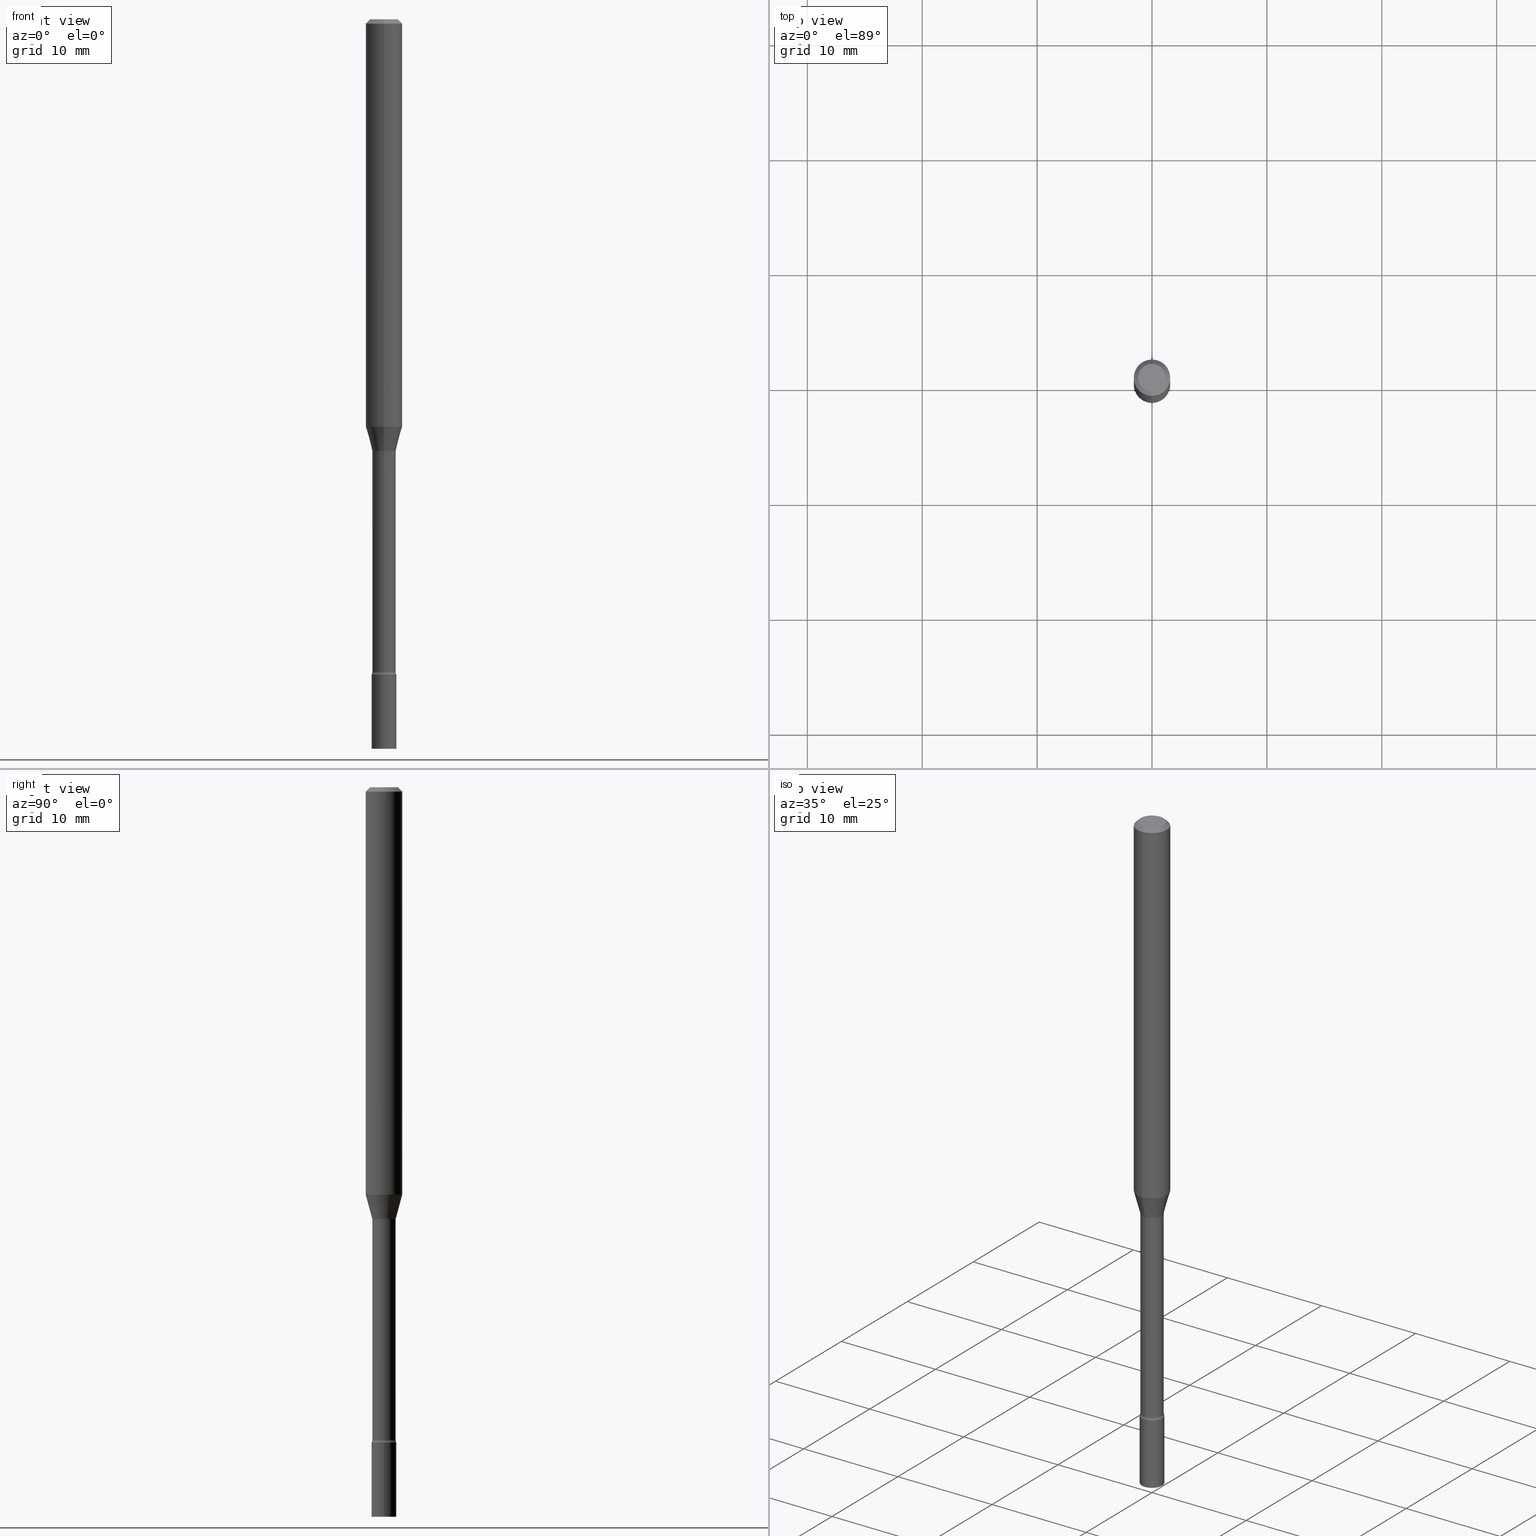
[diagram: canonical four-view strip — front | top / right | iso, engineering-drawing reading convention]
A machine part, canonical four-view strip (front | top / right | iso — engineering-drawing reading convention). The complete STEP part file that produces these views, byte-faithful:
ISO-10303-21;
HEADER;
FILE_DESCRIPTION (( 'STEP AP203' ),
    '1' );
FILE_NAME ('01358.STEP',
    '2024-03-08T21:16:33',
    ( '' ),
    ( '' ),
    'SwSTEP 2.0',
    'SolidWorks 2023',
    '' );
FILE_SCHEMA (( 'CONFIG_CONTROL_DESIGN' ));
ENDSEC;

DATA;
#1 = APPROVAL_STATUS ( 'not_yet_approved' ) ;
#2 =( GEOMETRIC_REPRESENTATION_CONTEXT ( 3 ) GLOBAL_UNCERTAINTY_ASSIGNED_CONTEXT ( ( #361 ) ) GLOBAL_UNIT_ASSIGNED_CONTEXT ( ( #482, #167, #127 ) ) REPRESENTATION_CONTEXT ( 'NONE', 'WORKASPACE' ) );
#3 = CARTESIAN_POINT ( 'NONE',  ( 0.000000000000000000, 0.000000000000000000, 0.000000000000000000 ) ) ;
#4 = DIRECTION ( 'NONE',  ( -2.445431924933628948E-29, 3.491534154894454552E-15, 1.000000000000000000 ) ) ;
#5 = ADVANCED_FACE ( 'NONE', ( #419 ), #454, .T. ) ;
#6 = ORIENTED_EDGE ( 'NONE', *, *, #13, .T. ) ;
#7 = DIRECTION ( 'NONE',  ( -2.445431924933629508E-29, 3.491534154894454158E-15, 1.000000000000000000 ) ) ;
#8 = TOROIDAL_SURFACE ( 'NONE', #108, 0.05495000000000008905, 0.01500000000000000291 ) ;
#9 = CARTESIAN_POINT ( 'NONE',  ( 5.469535085443512815E-29, -7.809282428803610510E-15, -2.236633549139569688 ) ) ;
#10 = ORIENTED_EDGE ( 'NONE', *, *, #273, .T. ) ;
#11 = CALENDAR_DATE ( 2024, 8, 3 ) ;
#12 = ORIENTED_EDGE ( 'NONE', *, *, #493, .T. ) ;
#13 = EDGE_CURVE ( 'NONE', #248, #251, #325, .T. ) ;
#14 = AXIS2_PLACEMENT_3D ( 'NONE', #66, #377, #145 ) ;
#15 = AXIS2_PLACEMENT_3D ( 'NONE', #9, #277, #83 ) ;
#16 = PRODUCT ( '01358', '01358', '', ( #48 ) ) ;
#17 = EDGE_LOOP ( 'NONE', ( #435, #60, #416, #487 ) ) ;
#18 = APPROVAL_STATUS ( 'not_yet_approved' ) ;
#19 = APPLICATION_CONTEXT ( 'configuration controlled 3d designs of mechanical parts and assemblies' ) ;
#20 = COORDINATED_UNIVERSAL_TIME_OFFSET ( 5, 0, .BEHIND. ) ;
#21 = DIRECTION ( 'NONE',  ( -6.982962677686266711E-15, -1.000000000000000000, 6.838167693777865983E-15 ) ) ;
#22 = CARTESIAN_POINT ( 'NONE',  ( 5.489994671475998305E-29, -7.838494177738049558E-15, -2.245000000000000107 ) ) ;
#23 = DIRECTION ( 'NONE',  ( 2.438088387897960049E-29, -3.491481338843145188E-15, -1.000000000000000000 ) ) ;
#24 = AXIS2_PLACEMENT_3D ( 'NONE', #265, #425, #32 ) ;
#25 = APPROVAL_PERSON_ORGANIZATION ( #370, #520, #141 ) ;
#26 = DIRECTION ( 'NONE',  ( -2.445431924933629508E-29, 3.491534154894454158E-15, 1.000000000000000000 ) ) ;
#27 = CARTESIAN_POINT ( 'NONE',  ( 2.929212428171563580E-16, 0.03994999999999226947, -2.236633549139570132 ) ) ;
#28 = ADVANCED_FACE ( 'NONE', ( #294 ), #302, .T. ) ;
#29 = FACE_OUTER_BOUND ( 'NONE', #441, .T. ) ;
#30 = VERTEX_POINT ( 'NONE', #263 ) ;
#31 = DIRECTION ( 'NONE',  ( -2.445431924933629508E-29, 3.491534154894454158E-15, 1.000000000000000000 ) ) ;
#32 = DIRECTION ( 'NONE',  ( 1.000000000000000000, -6.982962677686267499E-15, 4.876176775795935793E-29 ) ) ;
#33 = FACE_OUTER_BOUND ( 'NONE', #208, .T. ) ;
#34 = CIRCLE ( 'NONE', #152, 0.04249999999999999611 ) ;
#35 = CARTESIAN_POINT ( 'NONE',  ( -3.837137991388062032E-16, -0.05495000000000789531, -2.236633549139569688 ) ) ;
#36 = DIRECTION ( 'NONE',  ( -2.445431924933629508E-29, 3.491534154894454158E-15, 1.000000000000000000 ) ) ;
#37 = CARTESIAN_POINT ( 'NONE',  ( 3.904432333002303135E-16, 0.05494999999999227586, -2.236633549139570132 ) ) ;
#38 = CC_DESIGN_PERSON_AND_ORGANIZATION_ASSIGNMENT ( #240, #392, ( #217 ) ) ;
#39 = ORIENTED_EDGE ( 'NONE', *, *, #362, .F. ) ;
#40 = EDGE_CURVE ( 'NONE', #243, #147, #200, .T. ) ;
#41 = DIRECTION ( 'NONE',  ( 1.000000000000000000, -6.982962677686254089E-15, 0.000000000000000000 ) ) ;
#42 = CARTESIAN_POINT ( 'NONE',  ( 0.04249999999999999611, -9.025479260909530016E-15, -2.500000000000000000 ) ) ;
#43 = CONICAL_SURFACE ( 'NONE', #144, 0.04046111260566399165, 0.2617993877991499074 ) ;
#44 = COORDINATED_UNIVERSAL_TIME_OFFSET ( 5, 0, .BEHIND. ) ;
#45 = FACE_OUTER_BOUND ( 'NONE', #121, .T. ) ;
#46 = CARTESIAN_POINT ( 'NONE',  ( 2.838618229362148951E-16, 0.03994999999999483686, -1.481974787463811394 ) ) ;
#47 = VERTEX_POINT ( 'NONE', #27 ) ;
#48 = MECHANICAL_CONTEXT ( 'NONE', #19, 'mechanical' ) ;
#49 = VECTOR ( 'NONE', #467, 39.37007874015748854 ) ;
#50 = EDGE_CURVE ( 'NONE', #490, #94, #483, .T. ) ;
#51 = ORIENTED_EDGE ( 'NONE', *, *, #378, .F. ) ;
#52 = ORIENTED_EDGE ( 'NONE', *, *, #166, .T. ) ;
#53 = MANIFOLD_SOLID_BREP ( 'Body-Move/Copy2[1]', #73 ) ;
#54 = ORIENTED_EDGE ( 'NONE', *, *, #262, .T. ) ;
#55 = PERSON_AND_ORGANIZATION ( #137, #110 ) ;
#56 = VECTOR ( 'NONE', #68, 39.37007874015748143 ) ;
#57 = APPROVAL_ROLE ( '' ) ;
#58 = DIRECTION ( 'NONE',  ( -2.445431924933629508E-29, 3.491534154894454158E-15, 1.000000000000000000 ) ) ;
#59 = CARTESIAN_POINT ( 'NONE',  ( 5.469617575287968605E-29, -7.809164298651321670E-15, -2.236633549139569688 ) ) ;
#60 = ORIENTED_EDGE ( 'NONE', *, *, #249, .T. ) ;
#61 = DIRECTION ( 'NONE',  ( -6.982962677686266711E-15, -1.000000000000000000, 3.491534154894454552E-15 ) ) ;
#62 = CARTESIAN_POINT ( 'NONE',  ( 2.967759138017274423E-16, 0.04249999999999127392, -2.500000000000000000 ) ) ;
#63 = AXIS2_PLACEMENT_3D ( 'NONE', #304, #427, #385 ) ;
#64 = APPROVAL_PERSON_ORGANIZATION ( #488, #159, #57 ) ;
#65 = FACE_OUTER_BOUND ( 'NONE', #223, .T. ) ;
#66 = CARTESIAN_POINT ( 'NONE',  ( 0.000000000000000000, 0.000000000000000000, 0.000000000000000000 ) ) ;
#67 = ADVANCED_FACE ( 'NONE', ( #153 ), #220, .T. ) ;
#68 = DIRECTION ( 'NONE',  ( -2.445431924933629508E-29, 3.491534154894454552E-15, 1.000000000000000000 ) ) ;
#69 = ORIENTED_EDGE ( 'NONE', *, *, #283, .T. ) ;
#70 = LINE ( 'NONE', #382, #49 ) ;
#71 = EDGE_CURVE ( 'NONE', #490, #280, #113, .T. ) ;
#72 = CARTESIAN_POINT ( 'NONE',  ( -2.789693589735121927E-16, -0.03995000000000789586, -2.236633549139569688 ) ) ;
#73 = CLOSED_SHELL ( 'NONE', ( #410, #28, #286, #67 ) ) ;
#74 = CIRCLE ( 'NONE', #501, 0.01500000000000000291 ) ;
#75 = ORIENTED_EDGE ( 'NONE', *, *, #199, .T. ) ;
#76 = DIRECTION ( 'NONE',  ( -6.982962677686265133E-15, -1.000000000000000000, 6.838167693777879394E-15 ) ) ;
#77 = ORIENTED_EDGE ( 'NONE', *, *, #183, .F. ) ;
#78 = LINE ( 'NONE', #160, #207 ) ;
#79 = APPROVAL_DATE_TIME ( #438, #86 ) ;
#80 = ADVANCED_FACE ( 'NONE', ( #266 ), #99, .F. ) ;
#81 = AXIS2_PLACEMENT_3D ( 'NONE', #182, #465, #424 ) ;
#82 = AXIS2_PLACEMENT_3D ( 'NONE', #111, #114, #197 ) ;
#83 = DIRECTION ( 'NONE',  ( -6.982962677686266711E-15, -1.000000000000000000, 6.838167693777865983E-15 ) ) ;
#84 = DIRECTION ( 'NONE',  ( 0.000000000000000000, 0.000000000000000000, 1.000000000000000000 ) ) ;
#85 = DIRECTION ( 'NONE',  ( -2.445468806185136597E-29, 3.491481338843145583E-15, 1.000000000000000000 ) ) ;
#86 = APPROVAL ( #1, 'UNSPECIFIED' ) ;
#87 = EDGE_LOOP ( 'NONE', ( #364, #139, #93, #405 ) ) ;
#88 = LENGTH_MEASURE_WITH_UNIT ( LENGTH_MEASURE( 0.02539999999999999897 ), #170 );
#89 = AXIS2_PLACEMENT_3D ( 'NONE', #329, #101, #255 ) ;
#90 = AXIS2_PLACEMENT_3D ( 'NONE', #469, #36, #296 ) ;
#91 = EDGE_CURVE ( 'NONE', #280, #169, #384, .T. ) ;
#92 = CC_DESIGN_APPROVAL ( #159, ( #353 ) ) ;
#93 = ORIENTED_EDGE ( 'NONE', *, *, #155, .T. ) ;
#94 = VERTEX_POINT ( 'NONE', #460 ) ;
#95 = COORDINATED_UNIVERSAL_TIME_OFFSET ( 5, 0, .BEHIND. ) ;
#96 = EDGE_CURVE ( 'NONE', #47, #172, #499, .T. ) ;
#97 = EDGE_LOOP ( 'NONE', ( #244, #446, #252, #516 ) ) ;
#98 = APPROVAL_DATE_TIME ( #451, #520 ) ;
#99 = TOROIDAL_SURFACE ( 'NONE', #89, 0.05494999999999999885, 0.01500000000000001506 ) ;
#100 = AXIS2_PLACEMENT_3D ( 'NONE', #470, #389, #117 ) ;
#101 = DIRECTION ( 'NONE',  ( -2.445431924933629508E-29, 3.491534154894454158E-15, 1.000000000000000000 ) ) ;
#102 = FACE_OUTER_BOUND ( 'NONE', #87, .T. ) ;
#103 = PLANE ( 'NONE',  #215 ) ;
#104 = LINE ( 'NONE', #261, #455 ) ;
#105 = DIRECTION ( 'NONE',  ( 6.982962677686265922E-15, 1.000000000000000000, -3.491534154894454552E-15 ) ) ;
#106 = DIRECTION ( 'NONE',  ( -2.445431924933629508E-29, 3.491534154894454552E-15, 1.000000000000000000 ) ) ;
#107 = ADVANCED_FACE ( 'NONE', ( #332 ), #103, .F. ) ;
#108 = AXIS2_PLACEMENT_3D ( 'NONE', #59, #372, #146 ) ;
#109 = EDGE_LOOP ( 'NONE', ( #407, #311 ) ) ;
#110 = ORGANIZATION ( 'UNSPECIFIED', 'UNSPECIFIED', '' ) ;
#111 = CARTESIAN_POINT ( 'NONE',  ( 0.000000000000000000, 0.000000000000000000, 0.000000000000000000 ) ) ;
#112 = DIRECTION ( 'NONE',  ( -2.445468806185136877E-29, 3.491481338843145188E-15, 1.000000000000000000 ) ) ;
#113 = LINE ( 'NONE', #186, #253 ) ;
#114 = DIRECTION ( 'NONE',  ( -2.445431924933629508E-29, 3.491534154894454158E-15, 1.000000000000000000 ) ) ;
#115 = DIRECTION ( 'NONE',  ( -2.445431924933629508E-29, 3.491534154894454158E-15, 1.000000000000000000 ) ) ;
#116 = CARTESIAN_POINT ( 'NONE',  ( -4.287811248607203282E-16, -0.06250000000000005551, -0.01499999999999981209 ) ) ;
#117 = DIRECTION ( 'NONE',  ( 6.982962677686265922E-15, 1.000000000000000000, -3.483106191921935554E-15 ) ) ;
#118 = TOROIDAL_SURFACE ( 'NONE', #216, 0.05495000000000008905, 0.01500000000000000291 ) ;
#119 = VERTEX_POINT ( 'NONE', #260 ) ;
#120 = LINE ( 'NONE', #352, #322 ) ;
#121 = EDGE_LOOP ( 'NONE', ( #496, #408 ) ) ;
#122 = DIRECTION ( 'NONE',  ( -6.982962677686265922E-15, -1.000000000000000000, 3.491534154894454552E-15 ) ) ;
#123 = EDGE_CURVE ( 'NONE', #147, #243, #510, .T. ) ;
#124 = ORIENTED_EDGE ( 'NONE', *, *, #123, .F. ) ;
#125 = DIRECTION ( 'NONE',  ( -6.982962677686265922E-15, -1.000000000000000000, 3.491534154894454158E-15 ) ) ;
#126 = CIRCLE ( 'NONE', #90, 0.06250000000000000000 ) ;
#127 =( NAMED_UNIT ( * ) SI_UNIT ( $, .STERADIAN. ) SOLID_ANGLE_UNIT ( ) );
#128 = ORIENTED_EDGE ( 'NONE', *, *, #400, .T. ) ;
#129 = CARTESIAN_POINT ( 'NONE',  ( 5.490077469885631570E-29, -7.838375605702861835E-15, -2.245000000000000107 ) ) ;
#130 = VERTEX_POINT ( 'NONE', #472 ) ;
#131 = ADVANCED_FACE ( 'NONE', ( #33 ), #391, .T. ) ;
#132 = PERSON_AND_ORGANIZATION ( #137, #110 ) ;
#133 = PRODUCT_RELATED_PRODUCT_CATEGORY ( 'detail', '', ( #16 ) ) ;
#134 = AXIS2_PLACEMENT_3D ( 'NONE', #226, #31, #509 ) ;
#135 = AXIS2_PLACEMENT_3D ( 'NONE', #337, #194, #312 ) ;
#136 = AXIS2_PLACEMENT_3D ( 'NONE', #35, #517, #158 ) ;
#137 = PERSON ( 'UNSPECIFIED', 'UNSPECIFIED', 'UNSPECIFIED', ('UNSPECIFIED'), ('UNSPECIFIED'), ('UNSPECIFIED') ) ;
#138 = VERTEX_POINT ( 'NONE', #350 ) ;
#139 = ORIENTED_EDGE ( 'NONE', *, *, #40, .T. ) ;
#140 = ORIENTED_EDGE ( 'NONE', *, *, #91, .F. ) ;
#141 = APPROVAL_ROLE ( '' ) ;
#142 = ORIENTED_EDGE ( 'NONE', *, *, #238, .F. ) ;
#143 = CARTESIAN_POINT ( 'NONE',  ( 0.000000000000000000, 0.000000000000000000, 0.000000000000000000 ) ) ;
#144 = AXIS2_PLACEMENT_3D ( 'NONE', #310, #429, #269 ) ;
#145 = DIRECTION ( 'NONE',  ( -6.982962677686265133E-15, -1.000000000000000000, 3.491534154894453763E-15 ) ) ;
#146 = DIRECTION ( 'NONE',  ( -6.982962677686265922E-15, -1.000000000000000000, 3.491534154894454158E-15 ) ) ;
#147 = VERTEX_POINT ( 'NONE', #42 ) ;
#148 = EDGE_CURVE ( 'NONE', #319, #119, #303, .T. ) ;
#149 = CARTESIAN_POINT ( 'NONE',  ( -0.04249999999999999611, 3.019806626980425514E-16, -2.090547413358334859E-30 ) ) ;
#150 = ORIENTED_EDGE ( 'NONE', *, *, #13, .F. ) ;
#151 = AXIS2_PLACEMENT_3D ( 'NONE', #224, #339, #21 ) ;
#152 = AXIS2_PLACEMENT_3D ( 'NONE', #129, #85, #173 ) ;
#153 = FACE_OUTER_BOUND ( 'NONE', #327, .T. ) ;
#154 = CARTESIAN_POINT ( 'NONE',  ( 4.440892098500969316E-16, 0.06249999999999993755, -0.01500000000000024751 ) ) ;
#155 = EDGE_CURVE ( 'NONE', #147, #119, #78, .T. ) ;
#156 = DIRECTION ( 'NONE',  ( -2.445468806185136597E-29, 3.491481338843145583E-15, 1.000000000000000000 ) ) ;
#157 = DIRECTION ( 'NONE',  ( -4.851104656540964275E-15, -0.7071067811865500152, -0.7071067811865450192 ) ) ;
#158 = DIRECTION ( 'NONE',  ( -6.982962677686266711E-15, -1.000000000000000000, 0.000000000000000000 ) ) ;
#159 = APPROVAL ( #457, 'UNSPECIFIED' ) ;
#160 = CARTESIAN_POINT ( 'NONE',  ( 0.04249999999999999611, -2.967759138016663549E-16, 2.072375129713272502E-30 ) ) ;
#161 = AXIS2_PLACEMENT_3D ( 'NONE', #338, #459, #61 ) ;
#162 = LOCAL_TIME ( 16, 16, 33.00000000000000000, #453 ) ;
#163 = ADVANCED_FACE ( 'NONE', ( #192 ), #43, .T. ) ;
#164 = CARTESIAN_POINT ( 'NONE',  ( -4.364351673553912750E-16, -0.06250000000000005551, -0.01499999999999981209 ) ) ;
#165 = CARTESIAN_POINT ( 'NONE',  ( 3.624123114295597738E-29, -5.174287315065933391E-15, -1.481974787463811172 ) ) ;
#166 = EDGE_CURVE ( 'NONE', #506, #276, #431, .T. ) ;
#167 =( NAMED_UNIT ( * ) PLANE_ANGLE_UNIT ( ) SI_UNIT ( $, .RADIAN. ) );
#168 = CIRCLE ( 'NONE', #161, 0.04749999999999999362 ) ;
#169 = VERTEX_POINT ( 'NONE', #164 ) ;
#170 =( LENGTH_UNIT ( ) NAMED_UNIT ( * ) SI_UNIT ( $, .METRE. ) );
#171 = LOCAL_TIME ( 16, 16, 33.00000000000000000, #95 ) ;
#172 = VERTEX_POINT ( 'NONE', #72 ) ;
#173 = DIRECTION ( 'NONE',  ( 1.000000000000000000, -6.982962677686276177E-15, 0.000000000000000000 ) ) ;
#174 = EDGE_LOOP ( 'NONE', ( #150, #292, #52, #250 ) ) ;
#175 = AXIS2_PLACEMENT_3D ( 'NONE', #345, #383, #76 ) ;
#176 = ADVANCED_FACE ( 'NONE', ( #234 ), #313, .T. ) ;
#177 = CARTESIAN_POINT ( 'NONE',  ( 3.668147887400451129E-31, -5.237301232341692009E-17, -0.01500000000000003067 ) ) ;
#178 = DATE_AND_TIME ( #363, #245 ) ;
#179 = ORIENTED_EDGE ( 'NONE', *, *, #40, .F. ) ;
#180 = CARTESIAN_POINT ( 'NONE',  ( 3.614574591875615765E-29, -5.160810454083656268E-15, -1.478092501787273250 ) ) ;
#181 = CONICAL_SURFACE ( 'NONE', #440, 0.06250000000000000000, 0.7853981633974483900 ) ;
#182 = CARTESIAN_POINT ( 'NONE',  ( 5.490077469885631570E-29, -7.838375605702861835E-15, -2.245000000000000107 ) ) ;
#183 = EDGE_CURVE ( 'NONE', #94, #169, #513, .T. ) ;
#184 = CYLINDRICAL_SURFACE ( 'NONE', #413, 0.06250000000000000000 ) ;
#185 = LINE ( 'NONE', #505, #403 ) ;
#186 = CARTESIAN_POINT ( 'NONE',  ( 4.364351673553919652E-16, 0.06249999999999995143, -0.01500000000000024751 ) ) ;
#187 = LINE ( 'NONE', #259, #56 ) ;
#188 = ORIENTED_EDGE ( 'NONE', *, *, #346, .T. ) ;
#189 = CARTESIAN_POINT ( 'NONE',  ( -2.789693589735301393E-16, -0.03995000000000518275, -1.481974787463810728 ) ) ;
#190 = CLOSED_SHELL ( 'NONE', ( #519, #5, #214, #203, #433, #163, #461, #131, #176, #107, #479, #289, #418, #80 ) ) ;
#191 = AXIS2_PLACEMENT_3D ( 'NONE', #206, #4, #122 ) ;
#192 = FACE_OUTER_BOUND ( 'NONE', #97, .T. ) ;
#193 = CC_DESIGN_APPROVAL ( #520, ( #422 ) ) ;
#194 = DIRECTION ( 'NONE',  ( -2.445431924933629508E-29, 3.491534154894454158E-15, 1.000000000000000000 ) ) ;
#195 = CARTESIAN_POINT ( 'NONE',  ( 3.668147887400451129E-31, -5.237301232341692009E-17, -0.01500000000000003067 ) ) ;
#196 = ORIENTED_EDGE ( 'NONE', *, *, #166, .F. ) ;
#197 = DIRECTION ( 'NONE',  ( -6.982962677686265133E-15, -1.000000000000000000, 3.491534154894453763E-15 ) ) ;
#198 = DIRECTION ( 'NONE',  ( -6.982962677686265922E-15, -1.000000000000000000, 3.491534154894454158E-15 ) ) ;
#199 = EDGE_CURVE ( 'NONE', #47, #138, #74, .T. ) ;
#200 = CIRCLE ( 'NONE', #366, 0.04249999999999999611 ) ;
#201 = DIRECTION ( 'NONE',  ( 2.445431924933629508E-29, -3.491534154894454158E-15, -1.000000000000000000 ) ) ;
#202 = AXIS2_PLACEMENT_3D ( 'NONE', #486, #443, #209 ) ;
#203 = ADVANCED_FACE ( 'NONE', ( #476 ), #181, .T. ) ;
#204 = CC_DESIGN_APPROVAL ( #86, ( #217 ) ) ;
#205 = PERSON_AND_ORGANIZATION_ROLE ( 'design_owner' ) ;
#206 = CARTESIAN_POINT ( 'NONE',  ( 2.967759138017211808E-16, 0.04249999999999216210, -2.245000000000000551 ) ) ;
#207 = VECTOR ( 'NONE', #236, 39.37007874015748143 ) ;
#208 = EDGE_LOOP ( 'NONE', ( #213, #367, #128, #140 ) ) ;
#209 = DIRECTION ( 'NONE',  ( -6.982962677686265922E-15, -1.000000000000000000, 6.751786635945948968E-15 ) ) ;
#210 = ORIENTED_EDGE ( 'NONE', *, *, #307, .T. ) ;
#211 = ORIENTED_EDGE ( 'NONE', *, *, #324, .F. ) ;
#212 = DATE_AND_TIME ( #495, #171 ) ;
#213 = ORIENTED_EDGE ( 'NONE', *, *, #249, .F. ) ;
#214 = ADVANCED_FACE ( 'NONE', ( #318 ), #118, .F. ) ;
#215 = AXIS2_PLACEMENT_3D ( 'NONE', #258, #504, #105 ) ;
#216 = AXIS2_PLACEMENT_3D ( 'NONE', #239, #274, #436 ) ;
#217 = PRODUCT_DEFINITION ( 'UNKNOWN', '', #353, #333 ) ;
#218 = DIRECTION ( 'NONE',  ( -6.982962677686265922E-15, -1.000000000000000000, 3.483106191921935554E-15 ) ) ;
#219 = CARTESIAN_POINT ( 'NONE',  ( -2.825384392229768271E-16, -0.04046111260566916112, -1.478092501787272806 ) ) ;
#220 = PLANE ( 'NONE',  #420 ) ;
#221 = DIRECTION ( 'NONE',  ( -2.445431924933629508E-29, 3.491534154894454158E-15, 1.000000000000000000 ) ) ;
#222 = CIRCLE ( 'NONE', #474, 0.01500000000000001159 ) ;
#223 = EDGE_LOOP ( 'NONE', ( #281, #373, #328, #210 ) ) ;
#224 = CARTESIAN_POINT ( 'NONE',  ( 5.469535085443512815E-29, -7.809282428803610510E-15, -2.236633549139569688 ) ) ;
#225 = CYLINDRICAL_SURFACE ( 'NONE', #489, 0.04249999999999999611 ) ;
#226 = CARTESIAN_POINT ( 'NONE',  ( 7.070086584994232253E-46, -1.009451481264948073E-31, -2.891140216543185469E-17 ) ) ;
#227 = CC_DESIGN_DATE_AND_TIME_ASSIGNMENT ( #178, #365, ( #422 ) ) ;
#228 = DIRECTION ( 'NONE',  ( -1.807323732225327773E-15, -0.2588190451025178529, 0.9659258262890690894 ) ) ;
#229 = CARTESIAN_POINT ( 'NONE',  ( 3.614574591875615765E-29, -5.160810454083656268E-15, -1.478092501787273250 ) ) ;
#230 = CYLINDRICAL_SURFACE ( 'NONE', #82, 0.03995000000000004103 ) ;
#231 = CARTESIAN_POINT ( 'NONE',  ( -3.837137991388241005E-16, -0.05495000000000517526, -1.481974787463810728 ) ) ;
#232 = CIRCLE ( 'NONE', #295, 0.03995000000000000634 ) ;
#233 = CC_DESIGN_PERSON_AND_ORGANIZATION_ASSIGNMENT ( #55, #298, ( #353 ) ) ;
#234 = FACE_OUTER_BOUND ( 'NONE', #450, .T. ) ;
#235 = EDGE_LOOP ( 'NONE', ( #323, #10 ) ) ;
#236 = DIRECTION ( 'NONE',  ( -2.445468806185136877E-29, 3.491481338843145188E-15, 1.000000000000000000 ) ) ;
#237 = ORIENTED_EDGE ( 'NONE', *, *, #449, .F. ) ;
#238 = EDGE_CURVE ( 'NONE', #172, #276, #120, .T. ) ;
#239 = CARTESIAN_POINT ( 'NONE',  ( 5.469617575287968605E-29, -7.809164298651321670E-15, -2.236633549139569688 ) ) ;
#240 = PERSON_AND_ORGANIZATION ( #137, #110 ) ;
#241 = CIRCLE ( 'NONE', #15, 0.03995000000000008267 ) ;
#242 = APPROVAL_ROLE ( '' ) ;
#243 = VERTEX_POINT ( 'NONE', #309 ) ;
#244 = ORIENTED_EDGE ( 'NONE', *, *, #324, .T. ) ;
#245 = LOCAL_TIME ( 16, 16, 33.00000000000000000, #20 ) ;
#246 = EDGE_LOOP ( 'NONE', ( #355, #75, #69, #452 ) ) ;
#247 = EDGE_CURVE ( 'NONE', #411, #130, #126, .T. ) ;
#248 = VERTEX_POINT ( 'NONE', #344 ) ;
#249 = EDGE_CURVE ( 'NONE', #130, #280, #306, .T. ) ;
#250 = ORIENTED_EDGE ( 'NONE', *, *, #406, .F. ) ;
#251 = VERTEX_POINT ( 'NONE', #219 ) ;
#252 = ORIENTED_EDGE ( 'NONE', *, *, #247, .F. ) ;
#253 = VECTOR ( 'NONE', #336, 39.37007874015748143 ) ;
#254 = CONICAL_SURFACE ( 'NONE', #202, 0.04046111260566399165, 0.2617993877991499074 ) ;
#255 = DIRECTION ( 'NONE',  ( -6.982962677686265922E-15, -1.000000000000000000, 3.491534154894454158E-15 ) ) ;
#256 = CC_DESIGN_PERSON_AND_ORGANIZATION_ASSIGNMENT ( #291, #293, ( #422 ) ) ;
#257 = CARTESIAN_POINT ( 'NONE',  ( 5.489994671475998305E-29, -7.838494177738049558E-15, -2.245000000000000107 ) ) ;
#258 = CARTESIAN_POINT ( 'NONE',  ( 3.316907271900976096E-16, 0.04749999999999999362, -1.803035734402024784E-16 ) ) ;
#259 = CARTESIAN_POINT ( 'NONE',  ( 2.838618229361602665E-16, 0.03995000000000004103, -1.394867894880335725E-16 ) ) ;
#260 = CARTESIAN_POINT ( 'NONE',  ( 0.04249999999999999611, -8.135151519504528486E-15, -2.245000000000000107 ) ) ;
#261 = CARTESIAN_POINT ( 'NONE',  ( -2.825384392229768271E-16, -0.04046111260566916112, -1.478092501787272806 ) ) ;
#262 = EDGE_CURVE ( 'NONE', #243, #319, #415, .T. ) ;
#263 = CARTESIAN_POINT ( 'NONE',  ( -2.967759138016113812E-16, -0.04250000000000784400, -2.245000000000000107 ) ) ;
#264 = CARTESIAN_POINT ( 'NONE',  ( 0.000000000000000000, 0.000000000000000000, 0.000000000000000000 ) ) ;
#265 = CARTESIAN_POINT ( 'NONE',  ( 0.000000000000000000, 0.000000000000000000, 0.000000000000000000 ) ) ;
#266 = FACE_OUTER_BOUND ( 'NONE', #447, .T. ) ;
#267 = DIRECTION ( 'NONE',  ( -2.445431924933629508E-29, 3.491534154894454158E-15, 1.000000000000000000 ) ) ;
#268 = DIRECTION ( 'NONE',  ( -2.445431924933629508E-29, 3.491534154894454158E-15, 1.000000000000000000 ) ) ;
#269 = DIRECTION ( 'NONE',  ( -6.982962677686265922E-15, -1.000000000000000000, 6.751786635945948968E-15 ) ) ;
#270 = AXIS2_PLACEMENT_3D ( 'NONE', #180, #462, #376 ) ;
#271 = DIRECTION ( 'NONE',  ( 1.000000000000000000, -7.105427357601001070E-15, 4.926316155352164082E-29 ) ) ;
#272 = EDGE_LOOP ( 'NONE', ( #12, #188, #39, #142 ) ) ;
#273 = EDGE_CURVE ( 'NONE', #94, #490, #168, .T. ) ;
#274 = DIRECTION ( 'NONE',  ( -2.445431924933629508E-29, 3.491534154894454158E-15, 1.000000000000000000 ) ) ;
#275 = CARTESIAN_POINT ( 'NONE',  ( 0.000000000000000000, 0.000000000000000000, 0.000000000000000000 ) ) ;
#276 = VERTEX_POINT ( 'NONE', #189 ) ;
#277 = DIRECTION ( 'NONE',  ( -2.445431924933629508E-29, 3.491534154894454158E-15, 1.000000000000000000 ) ) ;
#278 = AXIS2_PLACEMENT_3D ( 'NONE', #518, #515, #434 ) ;
#279 = AXIS2_PLACEMENT_3D ( 'NONE', #165, #7, #125 ) ;
#280 = VERTEX_POINT ( 'NONE', #154 ) ;
#281 = ORIENTED_EDGE ( 'NONE', *, *, #199, .F. ) ;
#282 = DIRECTION ( 'NONE',  ( 1.000000000000000000, 0.000000000000000000, 0.000000000000000000 ) ) ;
#283 = EDGE_CURVE ( 'NONE', #138, #30, #386, .T. ) ;
#284 = ORIENTED_EDGE ( 'NONE', *, *, #340, .T. ) ;
#285 = APPLICATION_PROTOCOL_DEFINITION ( 'international standard', 'config_control_design', 1994, #331 ) ;
#286 = ADVANCED_FACE ( 'NONE', ( #102 ), #225, .T. ) ;
#287 = CIRCLE ( 'NONE', #63, 0.01500000000000001159 ) ;
#288 = APPROVAL_DATE_TIME ( #212, #159 ) ;
#289 = ADVANCED_FACE ( 'NONE', ( #65 ), #8, .F. ) ;
#290 = ORIENTED_EDGE ( 'NONE', *, *, #50, .F. ) ;
#291 = PERSON_AND_ORGANIZATION ( #137, #110 ) ;
#292 = ORIENTED_EDGE ( 'NONE', *, *, #437, .T. ) ;
#293 = PERSON_AND_ORGANIZATION_ROLE ( 'classification_officer' ) ;
#294 = FACE_OUTER_BOUND ( 'NONE', #109, .T. ) ;
#295 = AXIS2_PLACEMENT_3D ( 'NONE', #417, #268, #428 ) ;
#296 = DIRECTION ( 'NONE',  ( -6.982962677686265922E-15, -1.000000000000000000, 4.370956789862821150E-15 ) ) ;
#297 = CARTESIAN_POINT ( 'NONE',  ( 6.113672015462842613E-29, -8.728703347107864943E-15, -2.500000000000000000 ) ) ;
#298 = PERSON_AND_ORGANIZATION_ROLE ( 'design_supplier' ) ;
#299 = CARTESIAN_POINT ( 'NONE',  ( -0.04249999999999999611, -7.981558813707320936E-15, -2.245000000000000107 ) ) ;
#300 = ORIENTED_EDGE ( 'NONE', *, *, #406, .T. ) ;
#301 = DIRECTION ( 'NONE',  ( -6.982962677686266711E-15, -1.000000000000000000, 6.427877632151208176E-15 ) ) ;
#302 = PLANE ( 'NONE',  #81 ) ;
#303 = CIRCLE ( 'NONE', #278, 0.04249999999999999611 ) ;
#304 = CARTESIAN_POINT ( 'NONE',  ( 3.904432333002112329E-16, 0.05494999999999482937, -1.481974787463811394 ) ) ;
#305 = VECTOR ( 'NONE', #157, 39.37007874015748143 ) ;
#306 = LINE ( 'NONE', #503, #445 ) ;
#307 = EDGE_CURVE ( 'NONE', #30, #138, #484, .T. ) ;
#308 = DIRECTION ( 'NONE',  ( 1.000000000000000000, -6.982962677686254089E-15, 0.000000000000000000 ) ) ;
#309 = CARTESIAN_POINT ( 'NONE',  ( -0.04249999999999999611, -7.981558813707320936E-15, -2.500000000000000000 ) ) ;
#310 = CARTESIAN_POINT ( 'NONE',  ( 3.614574591875615765E-29, -5.160810454083656268E-15, -1.478092501787273250 ) ) ;
#311 = ORIENTED_EDGE ( 'NONE', *, *, #148, .T. ) ;
#312 = DIRECTION ( 'NONE',  ( -6.982962677686265922E-15, -1.000000000000000000, 4.370956789862821150E-15 ) ) ;
#313 = CONICAL_SURFACE ( 'NONE', #100, 0.06250000000000000000, 0.7853981633974483900 ) ;
#314 = DIRECTION ( 'NONE',  ( 7.105427357601001859E-15, 1.000000000000000000, 0.000000000000000000 ) ) ;
#315 = ORIENTED_EDGE ( 'NONE', *, *, #71, .T. ) ;
#316 = COORDINATED_UNIVERSAL_TIME_OFFSET ( 5, 0, .BEHIND. ) ;
#317 = CC_DESIGN_PERSON_AND_ORGANIZATION_ASSIGNMENT ( #132, #205, ( #16 ) ) ;
#318 = FACE_OUTER_BOUND ( 'NONE', #246, .T. ) ;
#319 = VERTEX_POINT ( 'NONE', #299 ) ;
#320 = CARTESIAN_POINT ( 'NONE',  ( 3.840629472727447874E-16, 0.04749999999999999362, -1.947592745229184119E-16 ) ) ;
#321 = AXIS2_PLACEMENT_3D ( 'NONE', #229, #463, #371 ) ;
#322 = VECTOR ( 'NONE', #106, 39.37007874015748143 ) ;
#323 = ORIENTED_EDGE ( 'NONE', *, *, #50, .T. ) ;
#324 = EDGE_CURVE ( 'NONE', #251, #248, #343, .T. ) ;
#325 = CIRCLE ( 'NONE', #321, 0.04046111260566399165 ) ;
#326 = ADVANCED_BREP_SHAPE_REPRESENTATION ( '01358', ( #53, #399, #432 ), #2 ) ;
#327 = EDGE_LOOP ( 'NONE', ( #124, #179 ) ) ;
#328 = ORIENTED_EDGE ( 'NONE', *, *, #439, .T. ) ;
#329 = CARTESIAN_POINT ( 'NONE',  ( 3.624123114295597738E-29, -5.174287315065933391E-15, -1.481974787463811172 ) ) ;
#330 = DIRECTION ( 'NONE',  ( -6.982962677686266711E-15, -1.000000000000000000, 6.427877632151208176E-15 ) ) ;
#331 = APPLICATION_CONTEXT ( 'configuration controlled 3d designs of mechanical parts and assemblies' ) ;
#332 = FACE_OUTER_BOUND ( 'NONE', #235, .T. ) ;
#333 = DESIGN_CONTEXT ( 'detailed design', #331, 'design' ) ;
#334 = CIRCLE ( 'NONE', #393, 0.06250000000000000000 ) ;
#335 = DIRECTION ( 'NONE',  ( 1.000000000000000000, -6.982962677686267499E-15, 4.876176775795935793E-29 ) ) ;
#336 = DIRECTION ( 'NONE',  ( 4.937700262164548042E-15, 0.7071067811865451302, -0.7071067811865499042 ) ) ;
#337 = CARTESIAN_POINT ( 'NONE',  ( 3.413437210810433507E-29, -4.873630905696038116E-15, -1.395842254289322071 ) ) ;
#338 = CARTESIAN_POINT ( 'NONE',  ( 7.070086584994232253E-46, -1.009451481264948073E-31, -2.891140216543185469E-17 ) ) ;
#339 = DIRECTION ( 'NONE',  ( -2.445431924933629508E-29, 3.491534154894454158E-15, 1.000000000000000000 ) ) ;
#340 = EDGE_CURVE ( 'NONE', #251, #411, #104, .T. ) ;
#341 = DIRECTION ( 'NONE',  ( -2.445431924933629508E-29, 3.491534154894454552E-15, 1.000000000000000000 ) ) ;
#342 = ORIENTED_EDGE ( 'NONE', *, *, #91, .T. ) ;
#343 = CIRCLE ( 'NONE', #270, 0.04046111260566399165 ) ;
#344 = CARTESIAN_POINT ( 'NONE',  ( 3.657913531386962787E-16, 0.04046111260565882911, -1.478092501787273472 ) ) ;
#345 = CARTESIAN_POINT ( 'NONE',  ( 3.624068457210734143E-29, -5.174365587122345573E-15, -1.481974787463811172 ) ) ;
#346 = EDGE_CURVE ( 'NONE', #47, #506, #187, .T. ) ;
#347 = DIRECTION ( 'NONE',  ( 6.982962677686265922E-15, 1.000000000000000000, -3.483106191921935554E-15 ) ) ;
#348 = ORIENTED_EDGE ( 'NONE', *, *, #238, .T. ) ;
#349 = DIRECTION ( 'NONE',  ( -6.982962677686265922E-15, -1.000000000000000000, 3.491534154894454158E-15 ) ) ;
#350 = CARTESIAN_POINT ( 'NONE',  ( 3.019806626980974758E-16, 0.04249999999999216904, -2.245000000000000551 ) ) ;
#351 = CIRCLE ( 'NONE', #136, 0.01500000000000000291 ) ;
#352 = CARTESIAN_POINT ( 'NONE',  ( -2.789693589735665748E-16, -0.03995000000000004103, 1.394867894880335725E-16 ) ) ;
#353 = PRODUCT_DEFINITION_FORMATION_WITH_SPECIFIED_SOURCE ( 'ANY', '', #16, .NOT_KNOWN. ) ;
#354 = DATE_AND_TIME ( #481, #502 ) ;
#355 = ORIENTED_EDGE ( 'NONE', *, *, #96, .F. ) ;
#356 = FACE_OUTER_BOUND ( 'NONE', #174, .T. ) ;
#357 = AXIS2_PLACEMENT_3D ( 'NONE', #177, #58, #218 ) ;
#358 = AXIS2_PLACEMENT_3D ( 'NONE', #22, #221, #301 ) ;
#359 = CC_DESIGN_DATE_AND_TIME_ASSIGNMENT ( #354, #395, ( #217 ) ) ;
#360 = PLANE ( 'NONE',  #191 ) ;
#361 = UNCERTAINTY_MEASURE_WITH_UNIT (LENGTH_MEASURE( 1.000000000000000082E-05 ), #482, 'distance_accuracy_value', 'NONE');
#362 = EDGE_CURVE ( 'NONE', #276, #506, #232, .T. ) ;
#363 = CALENDAR_DATE ( 2024, 8, 3 ) ;
#364 = ORIENTED_EDGE ( 'NONE', *, *, #262, .F. ) ;
#365 = DATE_TIME_ROLE ( 'classification_date' ) ;
#366 = AXIS2_PLACEMENT_3D ( 'NONE', #297, #381, #308 ) ;
#367 = ORIENTED_EDGE ( 'NONE', *, *, #449, .T. ) ;
#368 = AXIS2_PLACEMENT_3D ( 'NONE', #257, #115, #330 ) ;
#369 = EDGE_LOOP ( 'NONE', ( #494, #414, #402, #426 ) ) ;
#370 = PERSON_AND_ORGANIZATION ( #137, #110 ) ;
#371 = DIRECTION ( 'NONE',  ( -6.982962677686265922E-15, -1.000000000000000000, 6.751786635945948968E-15 ) ) ;
#372 = DIRECTION ( 'NONE',  ( -2.445431924933629508E-29, 3.491534154894454158E-15, 1.000000000000000000 ) ) ;
#373 = ORIENTED_EDGE ( 'NONE', *, *, #493, .F. ) ;
#374 = VECTOR ( 'NONE', #112, 39.37007874015748143 ) ;
#375 = LOCAL_TIME ( 16, 16, 33.00000000000000000, #316 ) ;
#376 = DIRECTION ( 'NONE',  ( -6.982962677686265922E-15, -1.000000000000000000, 6.751786635945948968E-15 ) ) ;
#377 = DIRECTION ( 'NONE',  ( -2.445431924933629508E-29, 3.491534154894454158E-15, 1.000000000000000000 ) ) ;
#378 = EDGE_CURVE ( 'NONE', #248, #130, #70, .T. ) ;
#379 = CARTESIAN_POINT ( 'NONE',  ( 3.668147887400451129E-31, -5.237301232341692009E-17, -0.01500000000000003067 ) ) ;
#380 = ORIENTED_EDGE ( 'NONE', *, *, #155, .F. ) ;
#381 = DIRECTION ( 'NONE',  ( -2.445468806185136597E-29, 3.491481338843145583E-15, 1.000000000000000000 ) ) ;
#382 = CARTESIAN_POINT ( 'NONE',  ( 2.874934964272957737E-16, 0.04046111260565882911, -1.478092501787273472 ) ) ;
#383 = DIRECTION ( 'NONE',  ( -2.445431924933629508E-29, 3.491534154894454158E-15, 1.000000000000000000 ) ) ;
#384 = CIRCLE ( 'NONE', #357, 0.06250000000000000000 ) ;
#385 = DIRECTION ( 'NONE',  ( 7.105427357601001859E-15, 1.000000000000000000, 0.000000000000000000 ) ) ;
#386 = CIRCLE ( 'NONE', #368, 0.04249999999999999611 ) ;
#387 = CYLINDRICAL_SURFACE ( 'NONE', #24, 0.04249999999999999611 ) ;
#388 = DIRECTION ( 'NONE',  ( -2.445431924933629508E-29, 3.491534154894454158E-15, 1.000000000000000000 ) ) ;
#389 = DIRECTION ( 'NONE',  ( 2.445431924933629508E-29, -3.491534154894454158E-15, -1.000000000000000000 ) ) ;
#390 = CC_DESIGN_PERSON_AND_ORGANIZATION_ASSIGNMENT ( #412, #492, ( #353 ) ) ;
#391 = CYLINDRICAL_SURFACE ( 'NONE', #466, 0.06250000000000000000 ) ;
#392 = PERSON_AND_ORGANIZATION_ROLE ( 'creator' ) ;
#393 = AXIS2_PLACEMENT_3D ( 'NONE', #379, #26, #464 ) ;
#394 = EDGE_CURVE ( 'NONE', #169, #280, #334, .T. ) ;
#395 = DATE_TIME_ROLE ( 'creation_date' ) ;
#396 = CARTESIAN_POINT ( 'NONE',  ( -4.364351673553572060E-16, -0.06250000000000484335, -1.395842254289321849 ) ) ;
#397 = FACE_OUTER_BOUND ( 'NONE', #477, .T. ) ;
#398 = APPLICATION_PROTOCOL_DEFINITION ( 'international standard', 'config_control_design', 1994, #19 ) ;
#399 = MANIFOLD_SOLID_BREP ( 'Body-Move/Copy2[2]', #190 ) ;
#400 = EDGE_CURVE ( 'NONE', #411, #169, #185, .T. ) ;
#401 = ORIENTED_EDGE ( 'NONE', *, *, #507, .F. ) ;
#402 = ORIENTED_EDGE ( 'NONE', *, *, #394, .T. ) ;
#403 = VECTOR ( 'NONE', #341, 39.37007874015748143 ) ;
#404 = ORIENTED_EDGE ( 'NONE', *, *, #96, .T. ) ;
#405 = ORIENTED_EDGE ( 'NONE', *, *, #148, .F. ) ;
#406 = EDGE_CURVE ( 'NONE', #251, #276, #222, .T. ) ;
#407 = ORIENTED_EDGE ( 'NONE', *, *, #507, .T. ) ;
#408 = ORIENTED_EDGE ( 'NONE', *, *, #283, .F. ) ;
#409 = DIMENSIONAL_EXPONENTS ( 1.000000000000000000, 0.000000000000000000, 0.000000000000000000, 0.000000000000000000, 0.000000000000000000, 0.000000000000000000, 0.000000000000000000 ) ;
#410 = ADVANCED_FACE ( 'NONE', ( #29 ), #387, .T. ) ;
#411 = VERTEX_POINT ( 'NONE', #396 ) ;
#412 = PERSON_AND_ORGANIZATION ( #137, #110 ) ;
#413 = AXIS2_PLACEMENT_3D ( 'NONE', #264, #267, #349 ) ;
#414 = ORIENTED_EDGE ( 'NONE', *, *, #183, .T. ) ;
#415 = LINE ( 'NONE', #149, #374 ) ;
#416 = ORIENTED_EDGE ( 'NONE', *, *, #394, .F. ) ;
#417 = CARTESIAN_POINT ( 'NONE',  ( 3.624068457210734143E-29, -5.174365587122345573E-15, -1.481974787463811172 ) ) ;
#418 = ADVANCED_FACE ( 'NONE', ( #397 ), #230, .T. ) ;
#419 = FACE_OUTER_BOUND ( 'NONE', #272, .T. ) ;
#420 = AXIS2_PLACEMENT_3D ( 'NONE', #62, #23, #468 ) ;
#421 = CIRCLE ( 'NONE', #135, 0.06250000000000000000 ) ;
#422 = SECURITY_CLASSIFICATION ( '', '', #448 ) ;
#423 = DIRECTION ( 'NONE',  ( -6.982962677686266711E-15, -1.000000000000000000, 0.000000000000000000 ) ) ;
#424 = DIRECTION ( 'NONE',  ( 1.000000000000000000, -6.982962677686265922E-15, 4.876176775795935793E-29 ) ) ;
#425 = DIRECTION ( 'NONE',  ( -2.445468806185136597E-29, 3.491481338843145583E-15, 1.000000000000000000 ) ) ;
#426 = ORIENTED_EDGE ( 'NONE', *, *, #71, .F. ) ;
#427 = DIRECTION ( 'NONE',  ( 1.000000000000000000, -7.105427357601001070E-15, 4.926316155352164082E-29 ) ) ;
#428 = DIRECTION ( 'NONE',  ( -6.982962677686265133E-15, -1.000000000000000000, 6.838167693777879394E-15 ) ) ;
#429 = DIRECTION ( 'NONE',  ( -2.445431924933629508E-29, 3.491534154894454158E-15, 1.000000000000000000 ) ) ;
#430 = AXIS2_PLACEMENT_3D ( 'NONE', #480, #156, #41 ) ;
#431 = CIRCLE ( 'NONE', #175, 0.03995000000000000634 ) ;
#432 = AXIS2_PLACEMENT_3D ( 'NONE', #275, #84, #282 ) ;
#433 = ADVANCED_FACE ( 'NONE', ( #473 ), #184, .T. ) ;
#434 = DIRECTION ( 'NONE',  ( 1.000000000000000000, -6.982962677686276177E-15, 0.000000000000000000 ) ) ;
#435 = ORIENTED_EDGE ( 'NONE', *, *, #247, .T. ) ;
#436 = DIRECTION ( 'NONE',  ( -6.982962677686265922E-15, -1.000000000000000000, 3.491534154894454158E-15 ) ) ;
#437 = EDGE_CURVE ( 'NONE', #248, #506, #287, .T. ) ;
#438 = DATE_AND_TIME ( #478, #375 ) ;
#439 = EDGE_CURVE ( 'NONE', #172, #30, #351, .T. ) ;
#440 = AXIS2_PLACEMENT_3D ( 'NONE', #195, #201, #347 ) ;
#441 = EDGE_LOOP ( 'NONE', ( #485, #54, #401, #380 ) ) ;
#442 = ORIENTED_EDGE ( 'NONE', *, *, #437, .F. ) ;
#443 = DIRECTION ( 'NONE',  ( -2.445431924933629508E-29, 3.491534154894454158E-15, 1.000000000000000000 ) ) ;
#444 = PERSON_AND_ORGANIZATION ( #137, #110 ) ;
#445 = VECTOR ( 'NONE', #512, 39.37007874015748143 ) ;
#446 = ORIENTED_EDGE ( 'NONE', *, *, #378, .T. ) ;
#447 = EDGE_LOOP ( 'NONE', ( #442, #211, #300, #491 ) ) ;
#448 = SECURITY_CLASSIFICATION_LEVEL ( 'unclassified' ) ;
#449 = EDGE_CURVE ( 'NONE', #130, #411, #421, .T. ) ;
#450 = EDGE_LOOP ( 'NONE', ( #77, #290, #315, #342 ) ) ;
#451 = DATE_AND_TIME ( #11, #162 ) ;
#452 = ORIENTED_EDGE ( 'NONE', *, *, #439, .F. ) ;
#453 = COORDINATED_UNIVERSAL_TIME_OFFSET ( 5, 0, .BEHIND. ) ;
#454 = CYLINDRICAL_SURFACE ( 'NONE', #14, 0.03995000000000004103 ) ;
#455 = VECTOR ( 'NONE', #228, 39.37007874015748143 ) ;
#456 = CC_DESIGN_SECURITY_CLASSIFICATION ( #422, ( #353 ) ) ;
#457 = APPROVAL_STATUS ( 'not_yet_approved' ) ;
#458 = PRODUCT_DEFINITION_SHAPE ( 'NONE', 'NONE',  #217 ) ;
#459 = DIRECTION ( 'NONE',  ( -2.445431924933629508E-29, 3.491534154894454158E-15, 1.000000000000000000 ) ) ;
#460 = CARTESIAN_POINT ( 'NONE',  ( -3.773273898774340269E-16, -0.04749999999999999362, 1.369364701920547025E-16 ) ) ;
#461 = ADVANCED_FACE ( 'NONE', ( #514 ), #254, .T. ) ;
#462 = DIRECTION ( 'NONE',  ( -2.445431924933629508E-29, 3.491534154894454158E-15, 1.000000000000000000 ) ) ;
#463 = DIRECTION ( 'NONE',  ( -2.445431924933629508E-29, 3.491534154894454158E-15, 1.000000000000000000 ) ) ;
#464 = DIRECTION ( 'NONE',  ( -6.982962677686265922E-15, -1.000000000000000000, 3.483106191921935554E-15 ) ) ;
#465 = DIRECTION ( 'NONE',  ( -2.438088387897960049E-29, 3.491481338843145188E-15, 1.000000000000000000 ) ) ;
#466 = AXIS2_PLACEMENT_3D ( 'NONE', #3, #388, #198 ) ;
#467 = DIRECTION ( 'NONE',  ( 1.839019923739597554E-15, 0.2588190451025245697, 0.9659258262890670910 ) ) ;
#468 = DIRECTION ( 'NONE',  ( -1.000000000000000000, 6.982962677686265922E-15, -4.876176775795935793E-29 ) ) ;
#469 = CARTESIAN_POINT ( 'NONE',  ( 3.413437210810433507E-29, -4.873630905696038116E-15, -1.395842254289322071 ) ) ;
#470 = CARTESIAN_POINT ( 'NONE',  ( 3.668147887400451129E-31, -5.237301232341692009E-17, -0.01500000000000003067 ) ) ;
#471 = ORIENTED_EDGE ( 'NONE', *, *, #346, .F. ) ;
#472 = CARTESIAN_POINT ( 'NONE',  ( 4.440892098500969316E-16, 0.06249999999999515665, -1.395842254289322293 ) ) ;
#473 = FACE_OUTER_BOUND ( 'NONE', #17, .T. ) ;
#474 = AXIS2_PLACEMENT_3D ( 'NONE', #231, #508, #423 ) ;
#475 = APPROVAL_PERSON_ORGANIZATION ( #444, #86, #242 ) ;
#476 = FACE_OUTER_BOUND ( 'NONE', #369, .T. ) ;
#477 = EDGE_LOOP ( 'NONE', ( #471, #404, #348, #196 ) ) ;
#478 = CALENDAR_DATE ( 2024, 8, 3 ) ;
#479 = ADVANCED_FACE ( 'NONE', ( #45 ), #360, .F. ) ;
#480 = CARTESIAN_POINT ( 'NONE',  ( 6.113672015462842613E-29, -8.728703347107864943E-15, -2.500000000000000000 ) ) ;
#481 = CALENDAR_DATE ( 2024, 8, 3 ) ;
#482 =( CONVERSION_BASED_UNIT ( 'INCH', #88 ) LENGTH_UNIT ( ) NAMED_UNIT ( #409 ) );
#483 = CIRCLE ( 'NONE', #134, 0.04749999999999999362 ) ;
#484 = CIRCLE ( 'NONE', #358, 0.04249999999999999611 ) ;
#485 = ORIENTED_EDGE ( 'NONE', *, *, #123, .T. ) ;
#486 = CARTESIAN_POINT ( 'NONE',  ( 3.614574591875615765E-29, -5.160810454083656268E-15, -1.478092501787273250 ) ) ;
#487 = ORIENTED_EDGE ( 'NONE', *, *, #400, .F. ) ;
#488 = PERSON_AND_ORGANIZATION ( #137, #110 ) ;
#489 = AXIS2_PLACEMENT_3D ( 'NONE', #143, #498, #335 ) ;
#490 = VERTEX_POINT ( 'NONE', #320 ) ;
#491 = ORIENTED_EDGE ( 'NONE', *, *, #362, .T. ) ;
#492 = PERSON_AND_ORGANIZATION_ROLE ( 'creator' ) ;
#493 = EDGE_CURVE ( 'NONE', #172, #47, #241, .T. ) ;
#494 = ORIENTED_EDGE ( 'NONE', *, *, #273, .F. ) ;
#495 = CALENDAR_DATE ( 2024, 8, 3 ) ;
#496 = ORIENTED_EDGE ( 'NONE', *, *, #307, .F. ) ;
#497 = SHAPE_DEFINITION_REPRESENTATION ( #458, #326 ) ;
#498 = DIRECTION ( 'NONE',  ( -2.445468806185136597E-29, 3.491481338843145583E-15, 1.000000000000000000 ) ) ;
#499 = CIRCLE ( 'NONE', #151, 0.03995000000000008267 ) ;
#500 = EDGE_LOOP ( 'NONE', ( #51, #6, #284, #237 ) ) ;
#501 = AXIS2_PLACEMENT_3D ( 'NONE', #37, #271, #314 ) ;
#502 = LOCAL_TIME ( 16, 16, 33.00000000000000000, #44 ) ;
#503 = CARTESIAN_POINT ( 'NONE',  ( 4.440892098500625669E-16, 0.06250000000000000000, -2.182208846809033848E-16 ) ) ;
#504 = DIRECTION ( 'NONE',  ( 2.445431924933628948E-29, -3.491534154894454552E-15, -1.000000000000000000 ) ) ;
#505 = CARTESIAN_POINT ( 'NONE',  ( -4.364351673553916201E-16, -0.06250000000000000000, 2.182208846809033848E-16 ) ) ;
#506 = VERTEX_POINT ( 'NONE', #46 ) ;
#507 = EDGE_CURVE ( 'NONE', #119, #319, #34, .T. ) ;
#508 = DIRECTION ( 'NONE',  ( -1.000000000000000000, 6.982962677686265922E-15, -4.883557194083112340E-29 ) ) ;
#509 = DIRECTION ( 'NONE',  ( -6.982962677686266711E-15, -1.000000000000000000, 3.491534154894454552E-15 ) ) ;
#510 = CIRCLE ( 'NONE', #430, 0.04249999999999999611 ) ;
#511 = TOROIDAL_SURFACE ( 'NONE', #279, 0.05494999999999999885, 0.01500000000000001506 ) ;
#512 = DIRECTION ( 'NONE',  ( -2.445431924933629508E-29, 3.491534154894454552E-15, 1.000000000000000000 ) ) ;
#513 = LINE ( 'NONE', #116, #305 ) ;
#514 = FACE_OUTER_BOUND ( 'NONE', #500, .T. ) ;
#515 = DIRECTION ( 'NONE',  ( -2.445468806185136597E-29, 3.491481338843145583E-15, 1.000000000000000000 ) ) ;
#516 = ORIENTED_EDGE ( 'NONE', *, *, #340, .F. ) ;
#517 = DIRECTION ( 'NONE',  ( -1.000000000000000000, 6.982962677686265922E-15, -4.883557194083112340E-29 ) ) ;
#518 = CARTESIAN_POINT ( 'NONE',  ( 5.490077469885631570E-29, -7.838375605702861835E-15, -2.245000000000000107 ) ) ;
#519 = ADVANCED_FACE ( 'NONE', ( #356 ), #511, .F. ) ;
#520 = APPROVAL ( #18, 'UNSPECIFIED' ) ;
ENDSEC;
END-ISO-10303-21;
